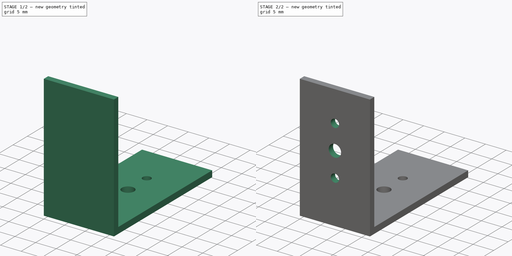
[diagram: build sequence overview — one tinted view per stage of 2, left to right]
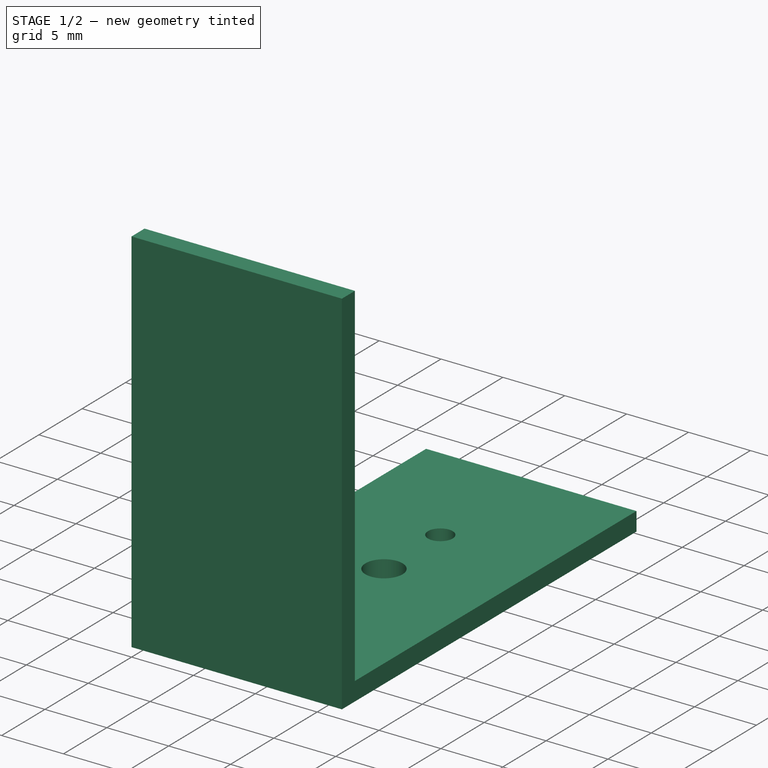
[diagram: stage 1 of 2 — iso view after this stage's code; geometry added in this stage tinted green]
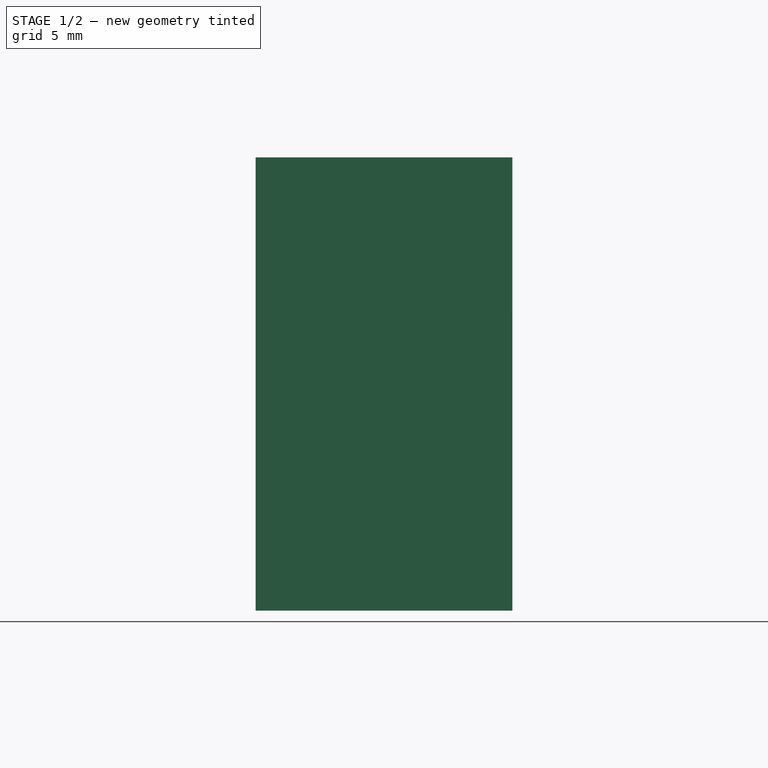
[diagram: stage 1 of 2 — front view after this stage's code; geometry added in this stage tinted green]
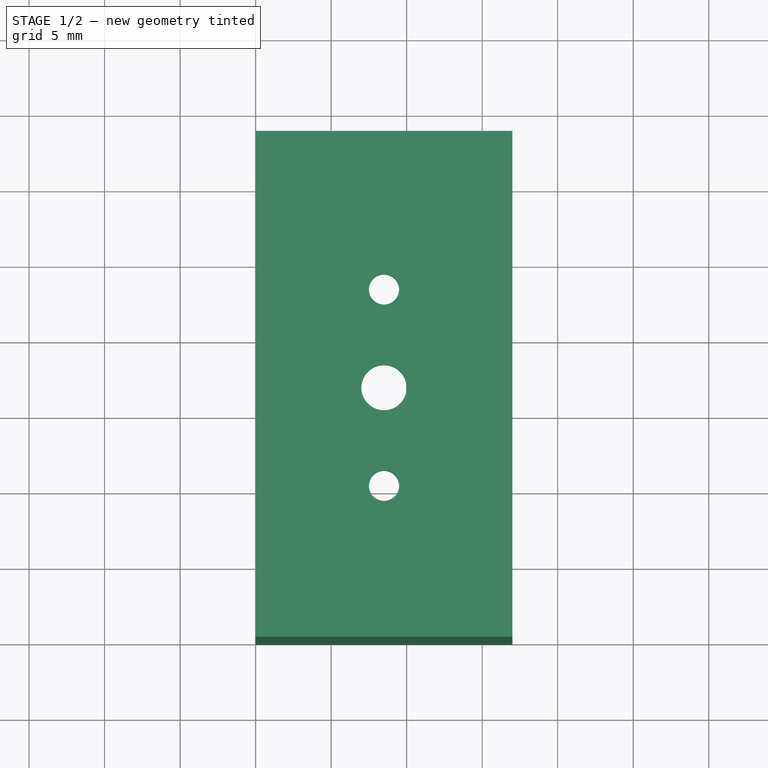
[diagram: stage 1 of 2 — top view after this stage's code; geometry added in this stage tinted green]
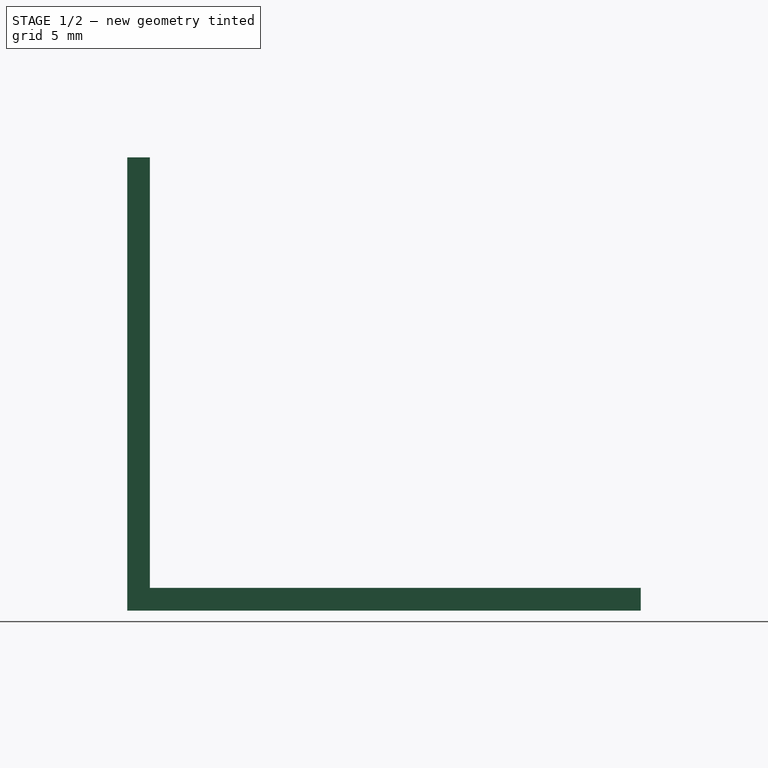
[diagram: stage 1 of 2 — right view after this stage's code; geometry added in this stage tinted green]
FCSTD DOCUMENT  (FreeCAD 0.16R6151 (Git))
Label: ServoMount
License: All rights reserved
LicenseURL: http://en.wikipedia.org/wiki/All_rights_reserved
objects: Sketcher::SketchObject×3, PartDesign::Pad×2, PartDesign::Pocket×1
note: 9 computed .brp shape members not serialized (recipe doc carries the construction recipe); baked Part::Feature solids carry a one-line shape summary decoded from their .brp

FEATURE [Sketcher::SketchObject] Sketch
  sketch-geometry (9):
    g0: LineSegment StartX=0 StartY=0 StartZ=0 EndX=17 EndY=0 EndZ=0
    g1: LineSegment StartX=17 StartY=0 StartZ=0 EndX=17 EndY=34 EndZ=0
    g2: LineSegment StartX=17 StartY=34 StartZ=0 EndX=0 EndY=34 EndZ=0
    g3: LineSegment StartX=0 StartY=34 StartZ=0 EndX=0 EndY=0 EndZ=0
    g4: LineSegment [constr] StartX=-6.59942 StartY=17 StartZ=0 EndX=23.8274 EndY=17 EndZ=0
    g5: LineSegment [constr] StartX=8.5 StartY=38.4156 StartZ=0 EndX=8.5 EndY=-5.21013 EndZ=0
    g6: Circle CenterX=8.5 CenterY=17 CenterZ=0 NormalX=0 NormalY=0 NormalZ=1 Radius=1.5
    g7: Circle CenterX=8.5 CenterY=10.5 CenterZ=0 NormalX=0 NormalY=0 NormalZ=1 Radius=1
    g8: Circle CenterX=8.5 CenterY=23.5 CenterZ=0 NormalX=0 NormalY=0 NormalZ=1 Radius=1
  constraints (28):
    c: Coincident(g0,g1)
    c: Coincident(g1,g2)
    c: Coincident(g2,g3)
    c: Coincident(g3,g0)
    c: Horizontal(g0)
    c: Horizontal(g2)
    c: Vertical(g1)
    c: Vertical(g3)
    c: Coincident(g0,g-1)
    c: Distance(g1) = 34
    c: Distance(g2) = 17
    c: Horizontal(g4)
    c: Symmetric(g-1,g2,g4)
    c: Symmetric(g0,g-1,g5)
    c: Distance(g5) = 43.6257
    c: Distance(g4) = 30.4268
    c: DistanceX(g4) = -6.59942
    c: DistanceX(g-1,g5) = 8.5
    c: PointOnObject(g6,g5)
    c: PointOnObject(g6,g4)
    c: Radius(g6) = 1.5
    c: PointOnObject(g7,g5)
    c: PointOnObject(g8,g5)
    c: Equal(g7,g8)
    c: Radius(g7) = 1
    c: DistanceY(g6,g7) = -6.5
    c: DistanceY(g6,g8) = 6.5
    c: DistanceY(g-1,g5) = -5.21013
FEATURE [PartDesign::Pad] Pad
  Length = 1.5
  Length2 = 100
  Sketch = -> Sketch
  Type = 0
FEATURE [Sketcher::SketchObject] Sketch001
  ExternalGeometry = -> [Pad]
  Support = -> Pad [Face6]
  sketch-geometry (4):
    g0: LineSegment StartX=0 StartY=0 StartZ=0 EndX=17 EndY=0 EndZ=0
    g1: LineSegment StartX=17 StartY=0 StartZ=0 EndX=17 EndY=1.5 EndZ=0
    g2: LineSegment StartX=17 StartY=1.5 StartZ=0 EndX=0 EndY=1.5 EndZ=0
    g3: LineSegment StartX=0 StartY=1.5 StartZ=0 EndX=0 EndY=0 EndZ=0
  constraints (11):
    c: Coincident(g0,g1)
    c: Coincident(g1,g2)
    c: Coincident(g2,g3)
    c: Coincident(g3,g0)
    c: Horizontal(g0)
    c: Horizontal(g2)
    c: Vertical(g1)
    c: Vertical(g3)
    c: Coincident(g0,g-1)
    c: PointOnObject(g1,g-3)
    c: Distance(g3) = 1.5
FEATURE [PartDesign::Pad] Pad001
  Length = 30
  Length2 = 100
  Sketch = -> Sketch001
  Type = 0
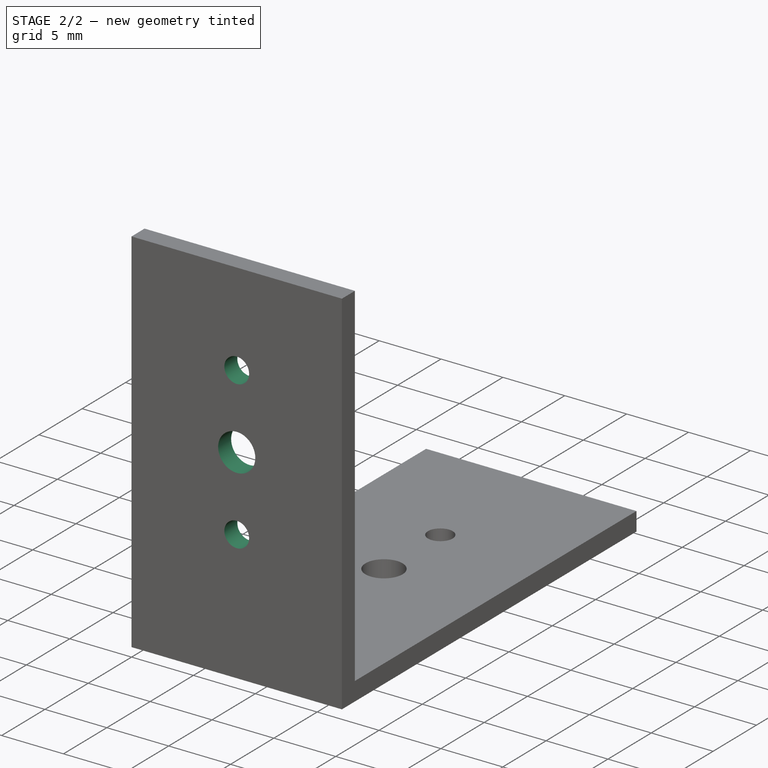
[diagram: stage 2 of 2 — iso view after this stage's code; geometry added in this stage tinted green]
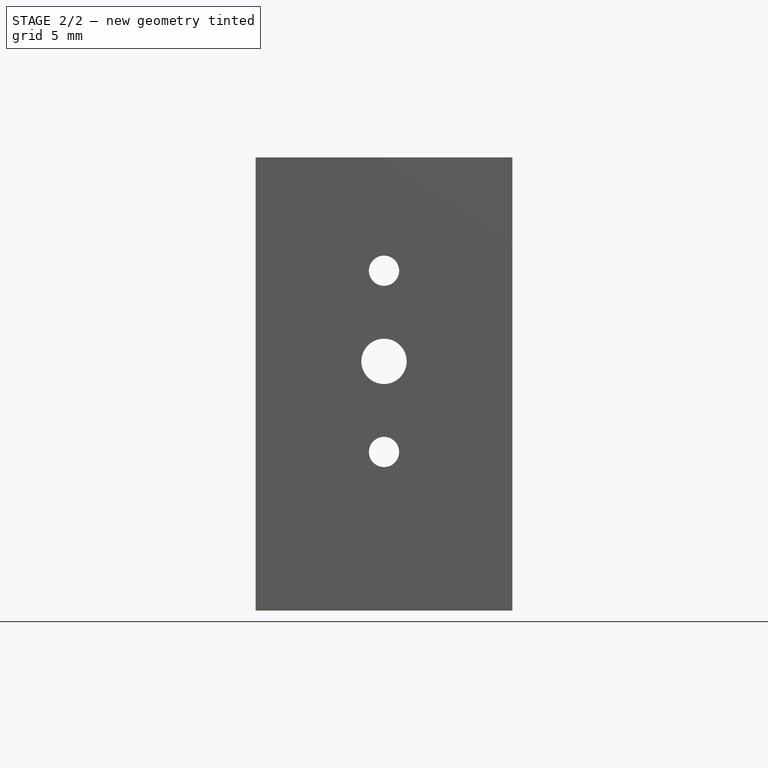
[diagram: stage 2 of 2 — front view after this stage's code; geometry added in this stage tinted green]
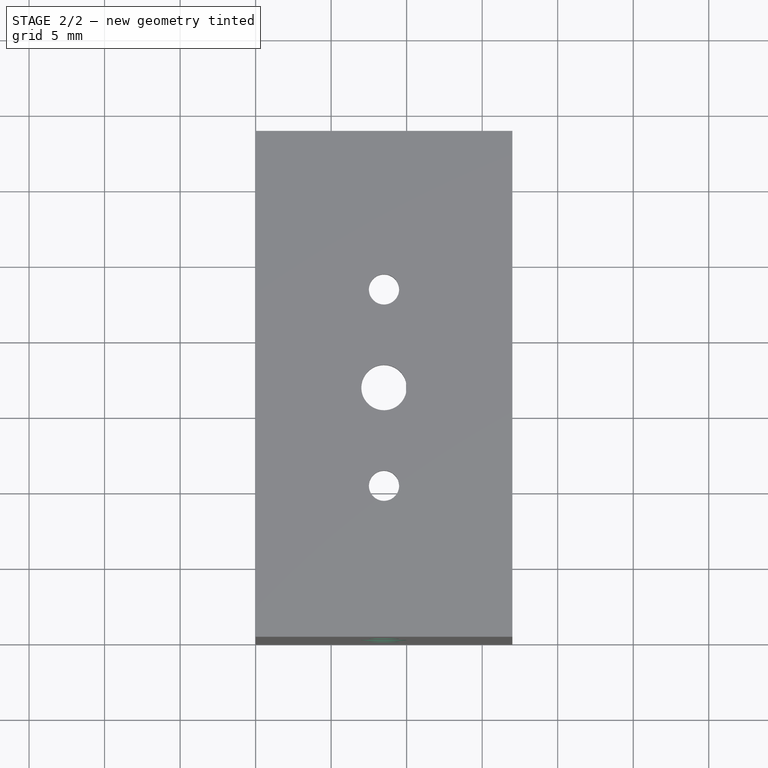
[diagram: stage 2 of 2 — top view after this stage's code; geometry added in this stage tinted green]
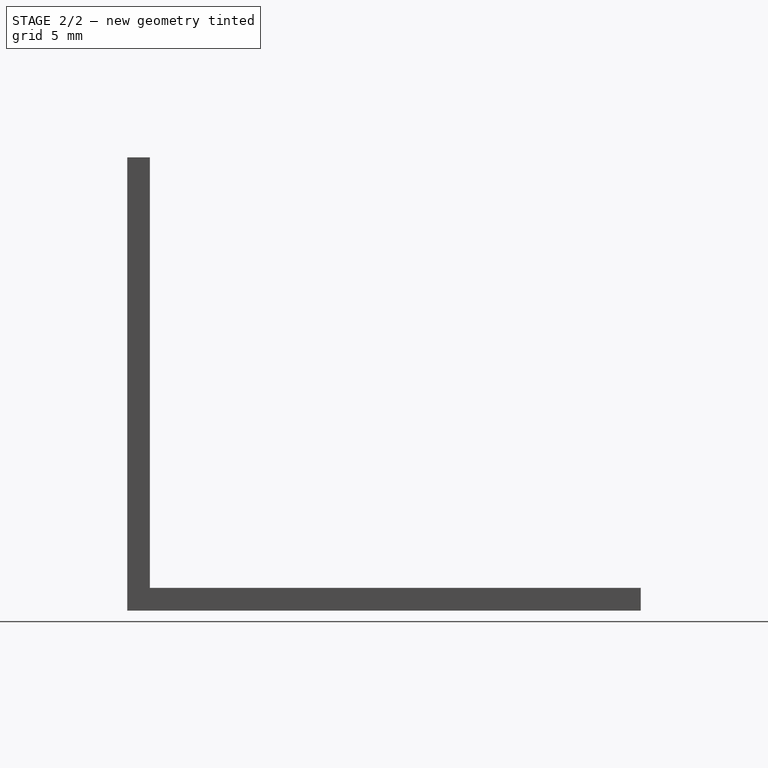
[diagram: stage 2 of 2 — right view after this stage's code; geometry added in this stage tinted green]
FEATURE [Sketcher::SketchObject] Sketch002
  ExternalGeometry = -> [Pad001]
  Placement = pos=(0,0,0) rot=(1,0,0;1.5708rad)
  Support = -> Pad001 [Face9]
  sketch-geometry (5):
    g0: LineSegment [constr] StartX=8.5 StartY=33.9691 StartZ=0 EndX=8.5 EndY=-3.46935 EndZ=0
    g1: LineSegment [constr] StartX=-3.19312 StartY=16.5 StartZ=0 EndX=19.5292 EndY=16.5 EndZ=0
    g2: Circle CenterX=8.5 CenterY=16.5 CenterZ=0 NormalX=0 NormalY=0 NormalZ=1 Radius=1.5
    g3: Circle CenterX=8.5 CenterY=10.5 CenterZ=0 NormalX=0 NormalY=0 NormalZ=1 Radius=1
    g4: Circle CenterX=8.5 CenterY=22.5 CenterZ=0 NormalX=0 NormalY=0 NormalZ=1 Radius=1
  constraints (17):
    c: Vertical(g0)
    c: Horizontal(g1)
    c: Symmetric(g-3,g-3,g0)
    c: Distance(g0) = 37.4384
    c: Distance(g1) = 22.7223
    c: DistanceX(g1,g-3) = 3.19312
    c: DistanceY(g-1,g0) = -3.46935
    c: PointOnObject(g2,g0)
    c: PointOnObject(g3,g0)
    c: PointOnObject(g4,g0)
    c: PointOnObject(g2,g1)
    c: DistanceY(g2,g3) = -6
    c: DistanceY(g2,g4) = 6
    c: Equal(g3,g4)
    c: Radius(g3) = 1
    c: Radius(g2) = 1.5
    c: Symmetric(g-3,g-4,g1)
FEATURE [PartDesign::Pocket] Pocket
  Length = 5
  Sketch = -> Sketch002
  Type = 1
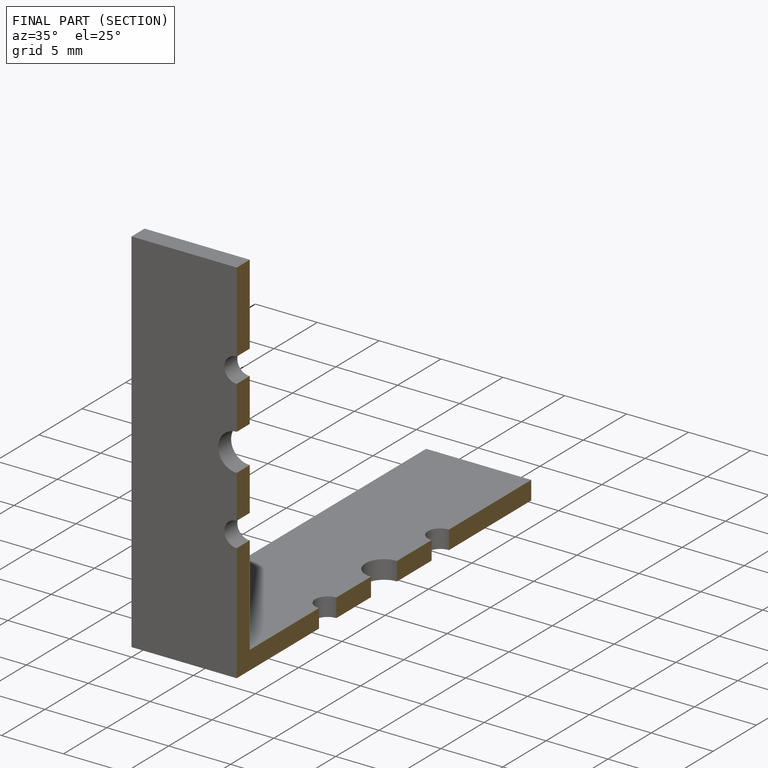
[diagram: finished part — half-section view (interior)]
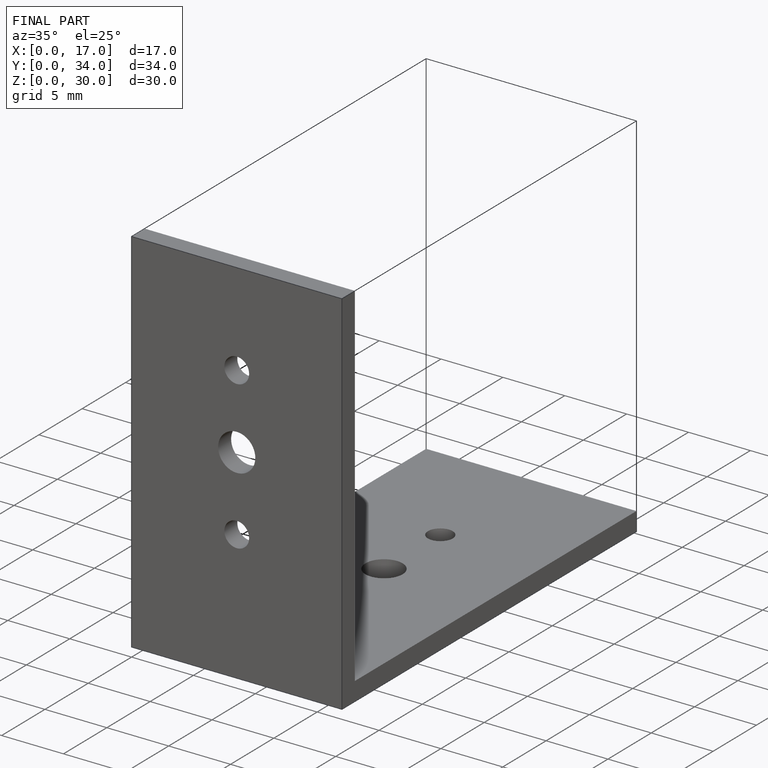
[diagram: finished part — iso view with bounding-box wireframe]
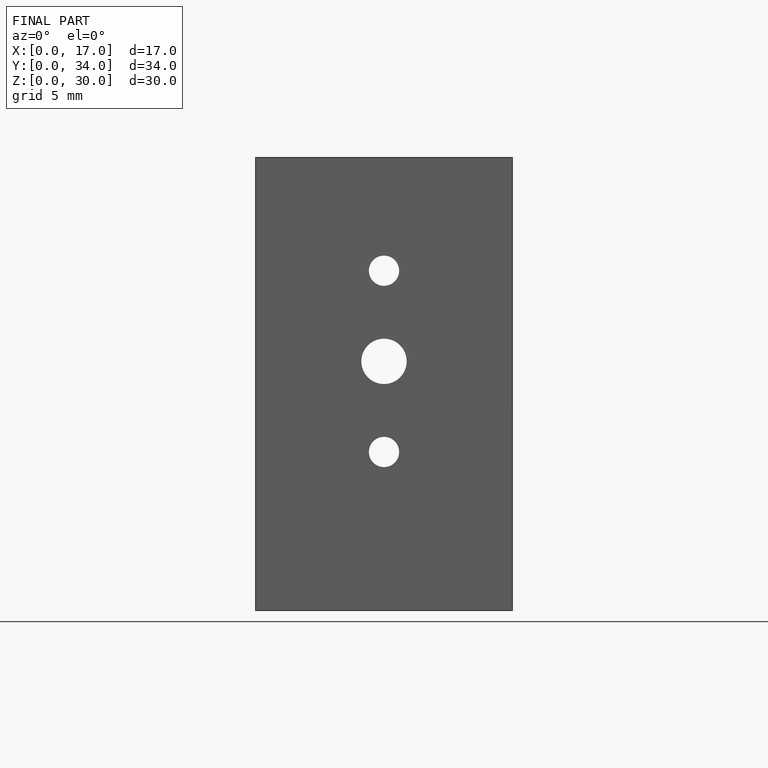
[diagram: finished part — front view with bounding-box wireframe]
